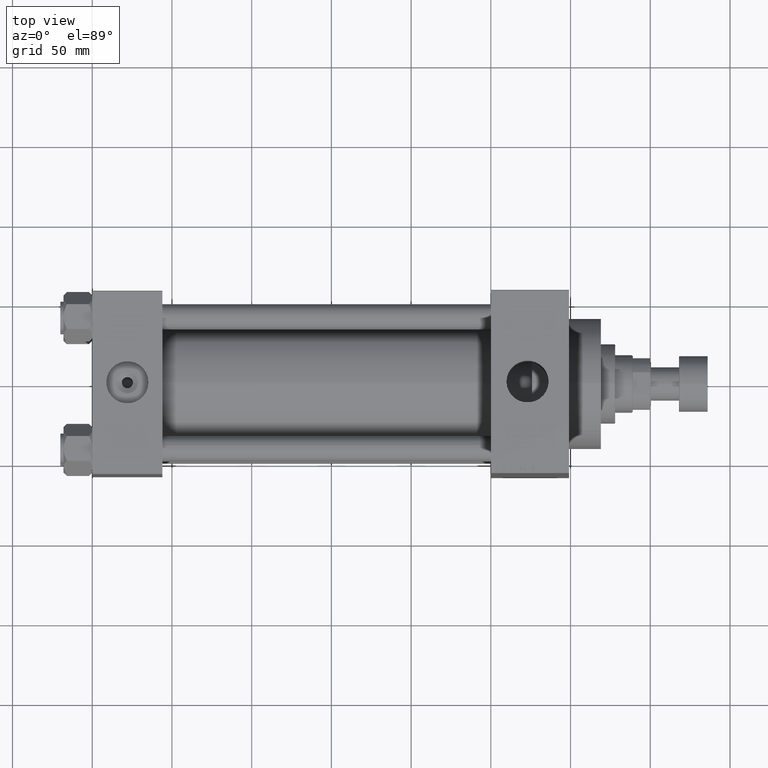
[diagram: clean part render]
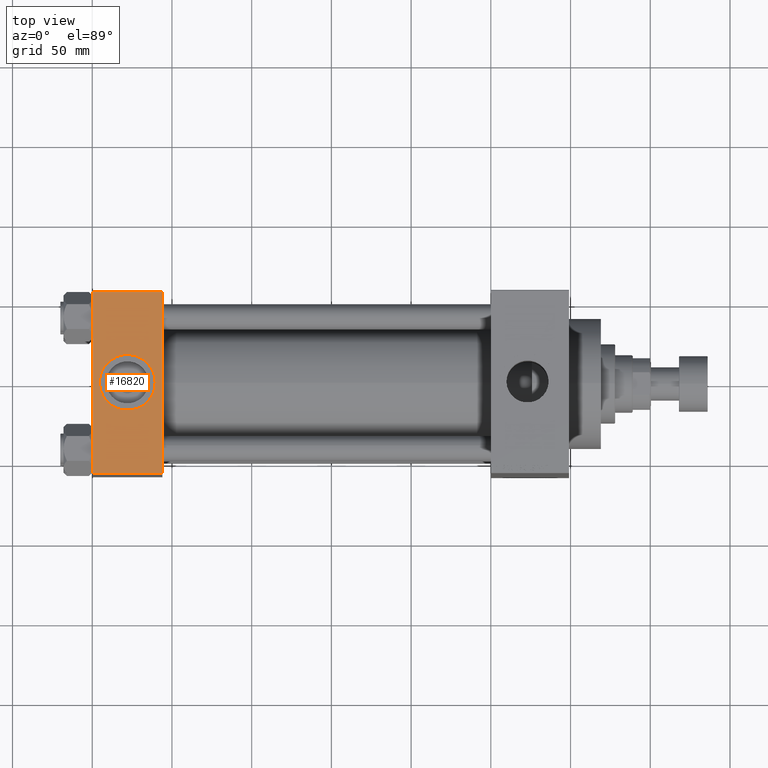
[diagram: same view with one face highlighted and labeled with its STEP entity id]
A machine part, top view. The second image highlights one B-rep face of the part: STEP entity #16820.
In plain terms, the highlighted planar face has unit normal (0, 0, -1).
Its self-contained STEP definition (entity closure, byte-faithful):
#365 = ORIENTED_EDGE ( 'NONE', *, *, #13482, .F. ) ;
#4424 = LINE ( 'NONE', #26905, #41942 ) ;
#4661 = DIRECTION ( 'NONE',  ( 0.000000000000000000, 0.000000000000000000, 1.000000000000000000 ) ) ;
#5924 = PLANE ( 'NONE',  #8730 ) ;
#6578 = CARTESIAN_POINT ( 'NONE',  ( 4.499999999999997335, -6.530485481376167224E-15, 57.50000000000000000 ) ) ;
#6804 = AXIS2_PLACEMENT_3D ( 'NONE', #45850, #27261, #38504 ) ;
#7023 = VERTEX_POINT ( 'NONE', #13379 ) ;
#7854 = DIRECTION ( 'NONE',  ( 0.000000000000000000, -1.000000000000000000, -1.206764157201257045E-16 ) ) ;
#8730 = AXIS2_PLACEMENT_3D ( 'NONE', #28659, #14225, #29141 ) ;
#10700 = VERTEX_POINT ( 'NONE', #38530 ) ;
#12074 = VERTEX_POINT ( 'NONE', #23151 ) ;
#13029 = DIRECTION ( 'NONE',  ( 0.000000000000000000, -1.000000000000000000, -1.206764157201257045E-16 ) ) ;
#13043 = CIRCLE ( 'NONE', #6804, 17.50000000000000000 ) ;
#13379 = CARTESIAN_POINT ( 'NONE',  ( 39.50000000000000000, -8.673617379884035472E-15, 57.50000000000000000 ) ) ;
#13482 = EDGE_CURVE ( 'NONE', #29162, #31665, #4424, .T. ) ;
#14225 = DIRECTION ( 'NONE',  ( 0.000000000000000000, 1.206764157201257045E-16, -1.000000000000000000 ) ) ;
#14276 = LINE ( 'NONE', #29427, #27423 ) ;
#15992 = VERTEX_POINT ( 'NONE', #6578 ) ;
#16552 = EDGE_CURVE ( 'NONE', #10700, #31665, #14276, .T. ) ;
#16645 = EDGE_LOOP ( 'NONE', ( #18353, #31400 ) ) ;
#16820 = ADVANCED_FACE ( 'NONE', ( #17648, #47724 ), #5924, .F. ) ;
#17420 = ORIENTED_EDGE ( 'NONE', *, *, #20924, .T. ) ;
#17648 = FACE_BOUND ( 'NONE', #16645, .T. ) ;
#18353 = ORIENTED_EDGE ( 'NONE', *, *, #27111, .F. ) ;
#19542 = CARTESIAN_POINT ( 'NONE',  ( 22.00000000000000000, -8.673617379884035472E-15, 57.50000000000000000 ) ) ;
#20924 = EDGE_CURVE ( 'NONE', #29162, #12074, #27520, .T. ) ;
#21098 = CARTESIAN_POINT ( 'NONE',  ( 0.000000000000000000, 57.49999999999999289, 57.50000000000000711 ) ) ;
#23151 = CARTESIAN_POINT ( 'NONE',  ( 0.000000000000000000, 57.00000000000000711, 57.50000000000000711 ) ) ;
#26905 = CARTESIAN_POINT ( 'NONE',  ( 44.00000000000000000, 57.49999999999999289, 57.50000000000000711 ) ) ;
#27111 = EDGE_CURVE ( 'NONE', #7023, #15992, #44863, .T. ) ;
#27261 = DIRECTION ( 'NONE',  ( 0.000000000000000000, 0.000000000000000000, 1.000000000000000000 ) ) ;
#27280 = DIRECTION ( 'NONE',  ( -1.000000000000000000, 0.000000000000000000, 0.000000000000000000 ) ) ;
#27423 = VECTOR ( 'NONE', #36773, 1000.000000000000000 ) ;
#27520 = LINE ( 'NONE', #35102, #43872 ) ;
#28659 = CARTESIAN_POINT ( 'NONE',  ( 44.00000000000000000, 57.49999999999999289, 57.50000000000000711 ) ) ;
#29141 = DIRECTION ( 'NONE',  ( 0.000000000000000000, 1.000000000000000000, 1.206764157201257045E-16 ) ) ;
#29162 = VERTEX_POINT ( 'NONE', #48055 ) ;
#29427 = CARTESIAN_POINT ( 'NONE',  ( 44.00000000000000000, -57.00000000000003553, 57.49999999999999289 ) ) ;
#31400 = ORIENTED_EDGE ( 'NONE', *, *, #42849, .F. ) ;
#31665 = VERTEX_POINT ( 'NONE', #32021 ) ;
#31904 = VECTOR ( 'NONE', #13029, 1000.000000000000000 ) ;
#32021 = CARTESIAN_POINT ( 'NONE',  ( 44.00000000000000000, -57.00000000000003553, 57.49999999999999289 ) ) ;
#34228 = DIRECTION ( 'NONE',  ( 1.000000000000000000, 0.000000000000000000, 0.000000000000000000 ) ) ;
#35102 = CARTESIAN_POINT ( 'NONE',  ( 0.000000000000000000, 57.00000000000000711, 57.50000000000000711 ) ) ;
#36029 = ORIENTED_EDGE ( 'NONE', *, *, #16552, .T. ) ;
#36773 = DIRECTION ( 'NONE',  ( 1.000000000000000000, 0.000000000000000000, 0.000000000000000000 ) ) ;
#37820 = AXIS2_PLACEMENT_3D ( 'NONE', #19542, #4661, #34228 ) ;
#38504 = DIRECTION ( 'NONE',  ( 1.000000000000000000, 0.000000000000000000, 0.000000000000000000 ) ) ;
#38530 = CARTESIAN_POINT ( 'NONE',  ( 0.000000000000000000, -57.00000000000003553, 57.49999999999999289 ) ) ;
#41942 = VECTOR ( 'NONE', #7854, 1000.000000000000000 ) ;
#42849 = EDGE_CURVE ( 'NONE', #15992, #7023, #13043, .T. ) ;
#43567 = EDGE_LOOP ( 'NONE', ( #47938, #36029, #365, #17420 ) ) ;
#43872 = VECTOR ( 'NONE', #27280, 1000.000000000000000 ) ;
#44863 = CIRCLE ( 'NONE', #37820, 17.50000000000000000 ) ;
#45850 = CARTESIAN_POINT ( 'NONE',  ( 22.00000000000000000, -8.673617379884035472E-15, 57.50000000000000000 ) ) ;
#46329 = EDGE_CURVE ( 'NONE', #12074, #10700, #46539, .T. ) ;
#46539 = LINE ( 'NONE', #21098, #31904 ) ;
#47724 = FACE_OUTER_BOUND ( 'NONE', #43567, .T. ) ;
#47938 = ORIENTED_EDGE ( 'NONE', *, *, #46329, .T. ) ;
#48055 = CARTESIAN_POINT ( 'NONE',  ( 44.00000000000000000, 57.00000000000000711, 57.50000000000000711 ) ) ;